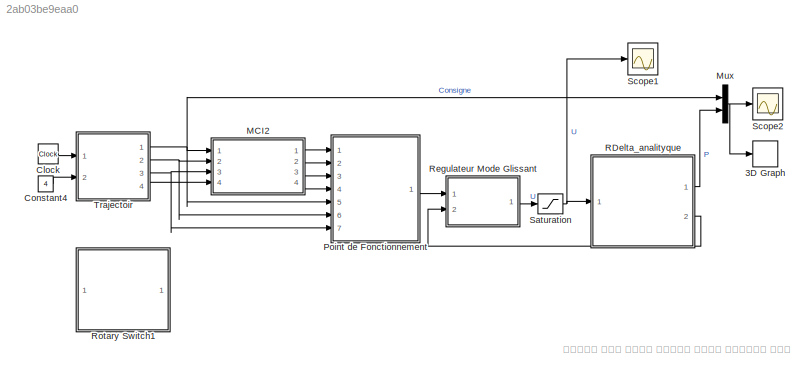
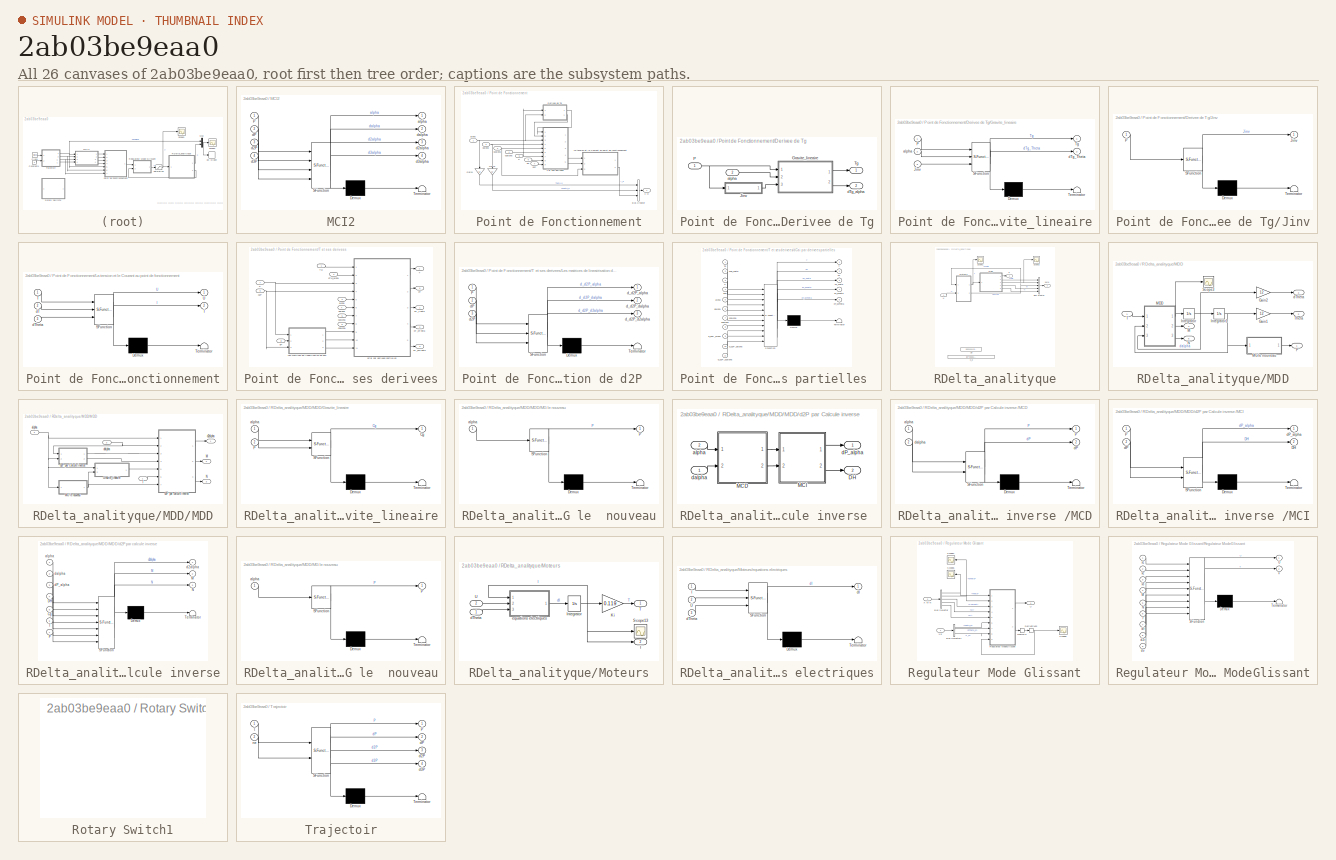
[diagram: thumbnail index - all 26 canvases of the model, root first then tree order]
MODEL slx_2ab03be9eaa0
KIND model
CONFIG AbsTol = auto
CONFIG FixedStep = auto
CONFIG MaxStep = auto
CONFIG MinStep = auto
CONFIG RelTol = 1e-3
CONFIG SampleTimeConstraint = Unconstrained
CONFIG Solver = ode45
CONFIG SolverMode = Auto
CONFIG SolverName = ode45
CONFIG StartTime = 0.0
CONFIG StopTime = 5
BLOCK [S-Function] 3D Graph
  CopyFcn = sfun3d([],[],[],'CopyBlock')
  DeleteFcn = sfun3d([],[],[],'DeleteBlock')
  FunctionName = sfun3d
  LoadFcn = sfun3d([],[],[],'LoadBlock')
  NameChangeFcn = sfun3d([],[],[],'NameChange')
  Parameters = ax,T,np,cp,gd,ls,mk
  Ports = [1]
  StartFcn = sfun3d([],[],[],'Start')
  StopFcn = sfun3d([],[],[],'Stop')
BLOCK [Clock] Clock
BLOCK [Constant] Constant4
  Value = 4
BLOCK [SubSystem] MCI2
  ErrorFcn = Stateflow.Translate.translate
  PermitHierarchicalResolution = ExplicitOnly
  Ports = [4, 4]
  RequestExecContextInheritance = off
  SFBlockType = MATLAB Function
  TreatAsAtomicUnit = on
BLOCK [Demux] MCI2/ Demux 
  Outputs = 1
  Ports = [1, 1]
BLOCK [S-Function] MCI2/ SFunction 
  EnableBusSupport = on
  FunctionName = sf_sfun
  PortCounts = [4 5]
  Ports = [4, 5]
  Tag = Stateflow S-Function Commande_1_ModeGlissant 2
BLOCK [Terminator] MCI2/ Terminator 
BLOCK [Inport] MCI2/P
  IconDisplay = Port number
BLOCK [Outport] MCI2/alpha
  IconDisplay = Port number
BLOCK [Inport] MCI2/d2P
  IconDisplay = Port number
  Port = 3
BLOCK [Outport] MCI2/d2alpha
  IconDisplay = Port number
  Port = 3
BLOCK [Inport] MCI2/d3P
  IconDisplay = Port number
  Port = 4
BLOCK [Outport] MCI2/d3alpha
  IconDisplay = Port number
  Port = 4
BLOCK [Inport] MCI2/dP
  IconDisplay = Port number
  Port = 2
BLOCK [Outport] MCI2/dalpha
  IconDisplay = Port number
  Port = 2
BLOCK [Mux] Mux
  DisplayOption = bar
  Inputs = 2
  Ports = [2, 1]
BLOCK [SubSystem] Point de Fonctionnement
  Ports = [7, 1]
  RequestExecContextInheritance = off
BLOCK [BusCreator] Point de Fonctionnement/Bus Creator
  DisplayOption = bar
  Inputs = 3
  Ports = [3, 1]
BLOCK [SubSystem] Point de Fonctionnement/Derivee de Tg
  Ports = [2, 2]
  RequestExecContextInheritance = off
BLOCK [SubSystem] Point de Fonctionnement/Derivee de Tg/Gravite_lineaire
  ErrorFcn = Stateflow.Translate.translate
  PermitHierarchicalResolution = ExplicitOnly
  Ports = [3, 2]
  RequestExecContextInheritance = off
  SFBlockType = MATLAB Function
  TreatAsAtomicUnit = on
BLOCK [Demux] Point de Fonctionnement/Derivee de Tg/Gravite_lineaire/ Demux 
  Outputs = 1
  Ports = [1, 1]
BLOCK [S-Function] Point de Fonctionnement/Derivee de Tg/Gravite_lineaire/ SFunction 
  EnableBusSupport = on
  FunctionName = sf_sfun
  PortCounts = [3 3]
  Ports = [3, 3]
  Tag = Stateflow S-Function Commande_1_ModeGlissant 6
BLOCK [Terminator] Point de Fonctionnement/Derivee de Tg/Gravite_lineaire/ Terminator 
BLOCK [Inport] Point de Fonctionnement/Derivee de Tg/Gravite_lineaire/Jinv
  IconDisplay = Port number
  Port = 3
BLOCK [Inport] Point de Fonctionnement/Derivee de Tg/Gravite_lineaire/P
  IconDisplay = Port number
BLOCK [Outport] Point de Fonctionnement/Derivee de Tg/Gravite_lineaire/Tg
  IconDisplay = Port number
BLOCK [Inport] Point de Fonctionnement/Derivee de Tg/Gravite_lineaire/alpha
  IconDisplay = Port number
  Port = 2
BLOCK [Outport] Point de Fonctionnement/Derivee de Tg/Gravite_lineaire/dTg_Theta
  IconDisplay = Port number
  Port = 2
BLOCK [SubSystem] Point de Fonctionnement/Derivee de Tg/Jinv
  ErrorFcn = Stateflow.Translate.translate
  PermitHierarchicalResolution = ExplicitOnly
  Ports = [1, 1]
  RequestExecContextInheritance = off
  SFBlockType = MATLAB Function
  TreatAsAtomicUnit = on
BLOCK [Demux] Point de Fonctionnement/Derivee de Tg/Jinv/ Demux 
  Outputs = 1
  Ports = [1, 1]
BLOCK [S-Function] Point de Fonctionnement/Derivee de Tg/Jinv/ SFunction 
  EnableBusSupport = on
  FunctionName = sf_sfun
  PortCounts = [1 2]
  Ports = [1, 2]
  Tag = Stateflow S-Function Commande_1_ModeGlissant 7
BLOCK [Terminator] Point de Fonctionnement/Derivee de Tg/Jinv/ Terminator 
BLOCK [Outport] Point de Fonctionnement/Derivee de Tg/Jinv/Jinv
  IconDisplay = Port number
BLOCK [Inport] Point de Fonctionnement/Derivee de Tg/Jinv/P
  IconDisplay = Port number
BLOCK [Inport] Point de Fonctionnement/Derivee de Tg/P
  IconDisplay = Port number
BLOCK [Outport] Point de Fonctionnement/Derivee de Tg/Tg
  IconDisplay = Port number
BLOCK [Inport] Point de Fonctionnement/Derivee de Tg/alpha
  IconDisplay = Port number
  Port = 2
BLOCK [Outport] Point de Fonctionnement/Derivee de Tg/dTg_alpha
  IconDisplay = Port number
  Port = 2
BLOCK [Gain] Point de Fonctionnement/Gain1
  Gain = 12
  OutDataTypeStr = Inherit: Inherit via internal rule
  ParamDataTypeStr = Inherit: Inherit via internal rule
  SaturateOnIntegerOverflow = off
BLOCK [Gain] Point de Fonctionnement/Gain4
  Gain = 12
  OutDataTypeStr = Inherit: Inherit via internal rule
  ParamDataTypeStr = Inherit: Inherit via internal rule
  SaturateOnIntegerOverflow = off
BLOCK [SubSystem] Point de Fonctionnement/La tension et le Courant au point de fonctionnement
  ErrorFcn = Stateflow.Translate.translate
  PermitHierarchicalResolution = ExplicitOnly
  Ports = [3, 2]
  RequestExecContextInheritance = off
  SFBlockType = MATLAB Function
  TreatAsAtomicUnit = on
BLOCK [Demux] Point de Fonctionnement/La tension et le Courant au point de fonctionnement/ Demux 
  Outputs = 1
  Ports = [1, 1]
BLOCK [S-Function] Point de Fonctionnement/La tension et le Courant au point de fonctionnement/ SFunction 
  EnableBusSupport = on
  FunctionName = sf_sfun
  PortCounts = [3 3]
  Ports = [3, 3]
  Tag = Stateflow S-Function Commande_1_ModeGlissant 11
BLOCK [Terminator] Point de Fonctionnement/La tension et le Courant au point de fonctionnement/ Terminator 
BLOCK [Outport] Point de Fonctionnement/La tension et le Courant au point de fonctionnement/I
  IconDisplay = Port number
  Port = 2
BLOCK [Inport] Point de Fonctionnement/La tension et le Courant au point de fonctionnement/T
  IconDisplay = Port number
BLOCK [Outport] Point de Fonctionnement/La tension et le Courant au point de fonctionnement/U
  IconDisplay = Port number
BLOCK [Inport] Point de Fonctionnement/La tension et le Courant au point de fonctionnement/dT
  IconDisplay = Port number
  Port = 2
BLOCK [Inport] Point de Fonctionnement/La tension et le Courant au point de fonctionnement/dTheta
  IconDisplay = Port number
  Port = 3
BLOCK [Inport] Point de Fonctionnement/P
  IconDisplay = Port number
  Port = 5
BLOCK [SubSystem] Point de Fonctionnement/T et ses derivees
  Ports = [9, 5]
  RequestExecContextInheritance = off
BLOCK [SubSystem] Point de Fonctionnement/T et ses derivees/Les matrices de lineairisation de d2P  
  ErrorFcn = Stateflow.Translate.translate
  PermitHierarchicalResolution = ExplicitOnly
  Ports = [3, 3]
  RequestExecContextInheritance = off
  SFBlockType = MATLAB Function
  TreatAsAtomicUnit = on
BLOCK [Demux] Point de Fonctionnement/T et ses derivees/Les matrices de lineairisation de d2P  / Demux 
  Outputs = 1
  Ports = [1, 1]
BLOCK [S-Function] Point de Fonctionnement/T et ses derivees/Les matrices de lineairisation de d2P  / SFunction 
  EnableBusSupport = on
  FunctionName = sf_sfun
  PortCounts = [3 4]
  Ports = [3, 4]
  Tag = Stateflow S-Function Commande_1_ModeGlissant 12
BLOCK [Terminator] Point de Fonctionnement/T et ses derivees/Les matrices de lineairisation de d2P  / Terminator 
BLOCK [Inport] Point de Fonctionnement/T et ses derivees/Les matrices de lineairisation de d2P  /P
  IconDisplay = Port number
BLOCK [Inport] Point de Fonctionnement/T et ses derivees/Les matrices de lineairisation de d2P  /d2P
  IconDisplay = Port number
  Port = 3
BLOCK [Inport] Point de Fonctionnement/T et ses derivees/Les matrices de lineairisation de d2P  /dP
  IconDisplay = Port number
  Port = 2
BLOCK [Outport] Point de Fonctionnement/T et ses derivees/Les matrices de lineairisation de d2P  /d_d2P_alpha
  IconDisplay = Port number
BLOCK [Outport] Point de Fonctionnement/T et ses derivees/Les matrices de lineairisation de d2P  /d_d2P_d2alpha
  IconDisplay = Port number
  Port = 3
BLOCK [Outport] Point de Fonctionnement/T et ses derivees/Les matrices de lineairisation de d2P  /d_d2P_dalpha
  IconDisplay = Port number
  Port = 2
BLOCK [Inport] Point de Fonctionnement/T et ses derivees/P
  IconDisplay = Port number
  Port = 7
BLOCK [Outport] Point de Fonctionnement/T et ses derivees/T
  IconDisplay = Port number
  Port = 4
BLOCK [Inport] Point de Fonctionnement/T et ses derivees/Tg
  IconDisplay = Port number
BLOCK [Inport] Point de Fonctionnement/T et ses derivees/alpha
  IconDisplay = Port number
  Port = 3
BLOCK [Inport] Point de Fonctionnement/T et ses derivees/d2P
  IconDisplay = Port number
  Port = 9
BLOCK [Inport] Point de Fonctionnement/T et ses derivees/d2alpha
  IconDisplay = Port number
  Port = 5
BLOCK [Inport] Point de Fonctionnement/T et ses derivees/d3alpha
  IconDisplay = Port number
  Port = 6
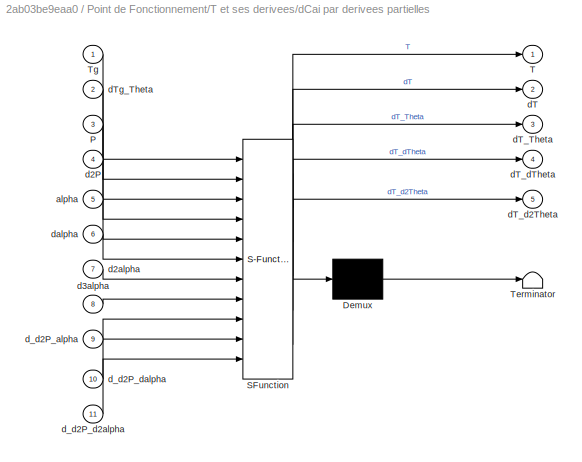
BLOCK [SubSystem] Point de Fonctionnement/T et ses derivees/dCai par derivees partielles 
  ErrorFcn = Stateflow.Translate.translate
  PermitHierarchicalResolution = ExplicitOnly
  Ports = [11, 5]
  RequestExecContextInheritance = off
  SFBlockType = MATLAB Function
  TreatAsAtomicUnit = on
BLOCK [Demux] Point de Fonctionnement/T et ses derivees/dCai par derivees partielles / Demux 
  Outputs = 1
  Ports = [1, 1]
BLOCK [S-Function] Point de Fonctionnement/T et ses derivees/dCai par derivees partielles / SFunction 
  EnableBusSupport = on
  FunctionName = sf_sfun
  PortCounts = [11 6]
  Ports = [11, 6]
  Tag = Stateflow S-Function Commande_1_ModeGlissant 13
BLOCK [Terminator] Point de Fonctionnement/T et ses derivees/dCai par derivees partielles / Terminator 
BLOCK [Inport] Point de Fonctionnement/T et ses derivees/dCai par derivees partielles /P
  IconDisplay = Port number
  Port = 3
BLOCK [Outport] Point de Fonctionnement/T et ses derivees/dCai par derivees partielles /T
  IconDisplay = Port number
BLOCK [Inport] Point de Fonctionnement/T et ses derivees/dCai par derivees partielles /Tg
  IconDisplay = Port number
BLOCK [Inport] Point de Fonctionnement/T et ses derivees/dCai par derivees partielles /alpha
  IconDisplay = Port number
  Port = 5
BLOCK [Inport] Point de Fonctionnement/T et ses derivees/dCai par derivees partielles /d2P
  IconDisplay = Port number
  Port = 4
BLOCK [Inport] Point de Fonctionnement/T et ses derivees/dCai par derivees partielles /d2alpha
  IconDisplay = Port number
  Port = 7
BLOCK [Inport] Point de Fonctionnement/T et ses derivees/dCai par derivees partielles /d3alpha
  IconDisplay = Port number
  Port = 8
BLOCK [Outport] Point de Fonctionnement/T et ses derivees/dCai par derivees partielles /dT
  IconDisplay = Port number
  Port = 2
BLOCK [Outport] Point de Fonctionnement/T et ses derivees/dCai par derivees partielles /dT_Theta
  IconDisplay = Port number
  Port = 3
BLOCK [Outport] Point de Fonctionnement/T et ses derivees/dCai par derivees partielles /dT_d2Theta
  IconDisplay = Port number
  Port = 5
BLOCK [Outport] Point de Fonctionnement/T et ses derivees/dCai par derivees partielles /dT_dTheta
  IconDisplay = Port number
  Port = 4
BLOCK [Inport] Point de Fonctionnement/T et ses derivees/dCai par derivees partielles /dTg_Theta
  IconDisplay = Port number
  Port = 2
BLOCK [Inport] Point de Fonctionnement/T et ses derivees/dCai par derivees partielles /d_d2P_alpha
  IconDisplay = Port number
  Port = 9
BLOCK [Inport] Point de Fonctionnement/T et ses derivees/dCai par derivees partielles /d_d2P_d2alpha
  IconDisplay = Port number
  Port = 11
BLOCK [Inport] Point de Fonctionnement/T et ses derivees/dCai par derivees partielles /d_d2P_dalpha
  IconDisplay = Port number
  Port = 10
BLOCK [Inport] Point de Fonctionnement/T et ses derivees/dCai par derivees partielles /dalpha
  IconDisplay = Port number
  Port = 6
BLOCK [Inport] Point de Fonctionnement/T et ses derivees/dP
  IconDisplay = Port number
  Port = 8
BLOCK [Outport] Point de Fonctionnement/T et ses derivees/dT
  IconDisplay = Port number
  Port = 5
BLOCK [Outport] Point de Fonctionnement/T et ses derivees/dT_Theta
  IconDisplay = Port number
BLOCK [Outport] Point de Fonctionnement/T et ses derivees/dT_d2Theta
  IconDisplay = Port number
  Port = 3
BLOCK [Outport] Point de Fonctionnement/T et ses derivees/dT_dTheta
  IconDisplay = Port number
  Port = 2
BLOCK [Inport] Point de Fonctionnement/T et ses derivees/dTg_alpha
  IconDisplay = Port number
  Port = 2
BLOCK [Inport] Point de Fonctionnement/T et ses derivees/dalpha
  IconDisplay = Port number
  Port = 4
BLOCK [Outport] Point de Fonctionnement/X-d
  IconDisplay = Port number
BLOCK [Inport] Point de Fonctionnement/alpha
  IconDisplay = Port number
BLOCK [Inport] Point de Fonctionnement/d2P
  IconDisplay = Port number
  Port = 7
BLOCK [Inport] Point de Fonctionnement/d2alpha
  IconDisplay = Port number
  Port = 3
BLOCK [Inport] Point de Fonctionnement/d3alpha
  IconDisplay = Port number
  Port = 4
BLOCK [Inport] Point de Fonctionnement/dP
  IconDisplay = Port number
  Port = 6
BLOCK [Inport] Point de Fonctionnement/dalpha
  IconDisplay = Port number
  Port = 2
BLOCK [SubSystem] RDelta_analityque
  Ports = [1, 2]
  RequestExecContextInheritance = off
BLOCK [BusCreator] RDelta_analityque/Bus Creator
  DisplayOption = bar
  Inputs = 5
  Ports = [5, 1]
BLOCK [SubSystem] RDelta_analityque/MDD
  Ports = [1, 5]
  RequestExecContextInheritance = off
BLOCK [Gain] RDelta_analityque/MDD/Gain1
  Gain = 12
  OutDataTypeStr = Inherit: Inherit via internal rule
  ParamDataTypeStr = Inherit: Inherit via internal rule
  SaturateOnIntegerOverflow = off
BLOCK [Gain] RDelta_analityque/MDD/Gain2
  Gain = 12
  OutDataTypeStr = Inherit: Inherit via internal rule
  ParamDataTypeStr = Inherit: Inherit via internal rule
  SaturateOnIntegerOverflow = off
BLOCK [Integrator] RDelta_analityque/MDD/Integrator
  InitialCondition = [0;0;0]
  Ports = [1, 1]
BLOCK [Integrator] RDelta_analityque/MDD/Integrator1
  InitialCondition = 0.0651*[1;1;1]
  Ports = [1, 1]
BLOCK [Outport] RDelta_analityque/MDD/M
  IconDisplay = Port number
  Port = 4
BLOCK [SubSystem] RDelta_analityque/MDD/MDD
  Ports = [3, 3]
  RequestExecContextInheritance = off
BLOCK [SubSystem] RDelta_analityque/MDD/MDD/Gravite_lineaire
  ErrorFcn = Stateflow.Translate.translate
  PermitHierarchicalResolution = ExplicitOnly
  Ports = [2, 1]
  RequestExecContextInheritance = off
  SFBlockType = MATLAB Function
  TreatAsAtomicUnit = on
BLOCK [Demux] RDelta_analityque/MDD/MDD/Gravite_lineaire/ Demux 
  Outputs = 1
  Ports = [1, 1]
BLOCK [S-Function] RDelta_analityque/MDD/MDD/Gravite_lineaire/ SFunction 
  EnableBusSupport = on
  FunctionName = sf_sfun
  PortCounts = [2 2]
  Ports = [2, 2]
  Tag = Stateflow S-Function Commande_1_ModeGlissant 8
BLOCK [Terminator] RDelta_analityque/MDD/MDD/Gravite_lineaire/ Terminator 
BLOCK [Outport] RDelta_analityque/MDD/MDD/Gravite_lineaire/Cg
  IconDisplay = Port number
BLOCK [Inport] RDelta_analityque/MDD/MDD/Gravite_lineaire/P
  IconDisplay = Port number
  Port = 2
BLOCK [Inport] RDelta_analityque/MDD/MDD/Gravite_lineaire/alpha
  IconDisplay = Port number
BLOCK [Outport] RDelta_analityque/MDD/MDD/M
  IconDisplay = Port number
  Port = 2
BLOCK [SubSystem] RDelta_analityque/MDD/MDD/MG le  nouveau
  ErrorFcn = Stateflow.Translate.translate
  PermitHierarchicalResolution = ExplicitOnly
  Ports = [1, 1]
  RequestExecContextInheritance = off
  SFBlockType = MATLAB Function
  TreatAsAtomicUnit = on
BLOCK [Demux] RDelta_analityque/MDD/MDD/MG le  nouveau/ Demux 
  Outputs = 1
  Ports = [1, 1]
BLOCK [S-Function] RDelta_analityque/MDD/MDD/MG le  nouveau/ SFunction 
  EnableBusSupport = on
  FunctionName = sf_sfun
  PortCounts = [1 2]
  Ports = [1, 2]
  Tag = Stateflow S-Function Commande_1_ModeGlissant 1
BLOCK [Terminator] RDelta_analityque/MDD/MDD/MG le  nouveau/ Terminator 
BLOCK [Outport] RDelta_analityque/MDD/MDD/MG le  nouveau/P
  IconDisplay = Port number
BLOCK [Inport] RDelta_analityque/MDD/MDD/MG le  nouveau/alpha
  IconDisplay = Port number
BLOCK [Outport] RDelta_analityque/MDD/MDD/N
  IconDisplay = Port number
  Port = 3
BLOCK [Inport] RDelta_analityque/MDD/MDD/T
  IconDisplay = Port number
BLOCK [Inport] RDelta_analityque/MDD/MDD/alpha
  IconDisplay = Port number
  Port = 2
BLOCK [SubSystem] RDelta_analityque/MDD/MDD/d2P par Calcule inverse 
  Ports = [2, 2]
  RequestExecContextInheritance = off
BLOCK [Outport] RDelta_analityque/MDD/MDD/d2P par Calcule inverse /DH
  IconDisplay = Port number
  Port = 2
BLOCK [SubSystem] RDelta_analityque/MDD/MDD/d2P par Calcule inverse /MCD
  ErrorFcn = Stateflow.Translate.translate
  PermitHierarchicalResolution = ExplicitOnly
  Ports = [2, 2]
  RequestExecContextInheritance = off
  SFBlockType = MATLAB Function
  TreatAsAtomicUnit = on
BLOCK [Demux] RDelta_analityque/MDD/MDD/d2P par Calcule inverse /MCD/ Demux 
  Outputs = 1
  Ports = [1, 1]
BLOCK [S-Function] RDelta_analityque/MDD/MDD/d2P par Calcule inverse /MCD/ SFunction 
  EnableBusSupport = on
  FunctionName = sf_sfun
  PortCounts = [2 3]
  Ports = [2, 3]
  Tag = Stateflow S-Function Commande_1_ModeGlissant 3
BLOCK [Terminator] RDelta_analityque/MDD/MDD/d2P par Calcule inverse /MCD/ Terminator 
BLOCK [Outport] RDelta_analityque/MDD/MDD/d2P par Calcule inverse /MCD/P
  IconDisplay = Port number
BLOCK [Inport] RDelta_analityque/MDD/MDD/d2P par Calcule inverse /MCD/alpha
  IconDisplay = Port number
BLOCK [Outport] RDelta_analityque/MDD/MDD/d2P par Calcule inverse /MCD/dP
  IconDisplay = Port number
  Port = 2
BLOCK [Inport] RDelta_analityque/MDD/MDD/d2P par Calcule inverse /MCD/dalpha
  IconDisplay = Port number
  Port = 2
BLOCK [SubSystem] RDelta_analityque/MDD/MDD/d2P par Calcule inverse /MCI
  ErrorFcn = Stateflow.Translate.translate
  PermitHierarchicalResolution = ExplicitOnly
  Ports = [2, 2]
  RequestExecContextInheritance = off
  SFBlockType = MATLAB Function
  TreatAsAtomicUnit = on
BLOCK [Demux] RDelta_analityque/MDD/MDD/d2P par Calcule inverse /MCI/ Demux 
  Outputs = 1
  Ports = [1, 1]
BLOCK [S-Function] RDelta_analityque/MDD/MDD/d2P par Calcule inverse /MCI/ SFunction 
  EnableBusSupport = on
  FunctionName = sf_sfun
  PortCounts = [2 3]
  Ports = [2, 3]
  Tag = Stateflow S-Function Commande_1_ModeGlissant 14
BLOCK [Terminator] RDelta_analityque/MDD/MDD/d2P par Calcule inverse /MCI/ Terminator 
BLOCK [Outport] RDelta_analityque/MDD/MDD/d2P par Calcule inverse /MCI/DH
  IconDisplay = Port number
  Port = 2
BLOCK [Inport] RDelta_analityque/MDD/MDD/d2P par Calcule inverse /MCI/P
  IconDisplay = Port number
BLOCK [Inport] RDelta_analityque/MDD/MDD/d2P par Calcule inverse /MCI/dP
  IconDisplay = Port number
  Port = 2
BLOCK [Outport] RDelta_analityque/MDD/MDD/d2P par Calcule inverse /MCI/dP_alpha
  IconDisplay = Port number
BLOCK [Inport] RDelta_analityque/MDD/MDD/d2P par Calcule inverse /alpha
  IconDisplay = Port number
  Port = 2
BLOCK [Outport] RDelta_analityque/MDD/MDD/d2P par Calcule inverse /dP_alpha
  IconDisplay = Port number
BLOCK [Inport] RDelta_analityque/MDD/MDD/d2P par Calcule inverse /dalpha
  IconDisplay = Port number
BLOCK [SubSystem] RDelta_analityque/MDD/MDD/d2P par calcule inverse
  ErrorFcn = Stateflow.Translate.translate
  PermitHierarchicalResolution = ExplicitOnly
  Ports = [7, 3]
  RequestExecContextInheritance = off
  SFBlockType = MATLAB Function
  TreatAsAtomicUnit = on
BLOCK [Demux] RDelta_analityque/MDD/MDD/d2P par calcule inverse/ Demux 
  Outputs = 1
  Ports = [1, 1]
BLOCK [S-Function] RDelta_analityque/MDD/MDD/d2P par calcule inverse/ SFunction 
  EnableBusSupport = on
  FunctionName = sf_sfun
  PortCounts = [7 4]
  Ports = [7, 4]
  Tag = Stateflow S-Function Commande_1_ModeGlissant 15
BLOCK [Terminator] RDelta_analityque/MDD/MDD/d2P par calcule inverse/ Terminator 
BLOCK [Inport] RDelta_analityque/MDD/MDD/d2P par calcule inverse/Cg
  IconDisplay = Port number
  Port = 5
BLOCK [Inport] RDelta_analityque/MDD/MDD/d2P par calcule inverse/DH
  IconDisplay = Port number
  Port = 4
BLOCK [Outport] RDelta_analityque/MDD/MDD/d2P par calcule inverse/M
  IconDisplay = Port number
  Port = 2
BLOCK [Outport] RDelta_analityque/MDD/MDD/d2P par calcule inverse/N
  IconDisplay = Port number
  Port = 3
BLOCK [Inport] RDelta_analityque/MDD/MDD/d2P par calcule inverse/P
  IconDisplay = Port number
  Port = 7
BLOCK [Inport] RDelta_analityque/MDD/MDD/d2P par calcule inverse/T
  IconDisplay = Port number
  Port = 6
BLOCK [Inport] RDelta_analityque/MDD/MDD/d2P par calcule inverse/alpha
  IconDisplay = Port number
BLOCK [Outport] RDelta_analityque/MDD/MDD/d2P par calcule inverse/d2alpha
  IconDisplay = Port number
BLOCK [Inport] RDelta_analityque/MDD/MDD/d2P par calcule inverse/dP_alpha
  IconDisplay = Port number
  Port = 3
BLOCK [Inport] RDelta_analityque/MDD/MDD/d2P par calcule inverse/dalpha
  IconDisplay = Port number
  Port = 2
BLOCK [Outport] RDelta_analityque/MDD/MDD/d2alpha
  IconDisplay = Port number
BLOCK [Inport] RDelta_analityque/MDD/MDD/dalpha
  IconDisplay = Port number
  Port = 3
BLOCK [SubSystem] RDelta_analityque/MDD/MG le  nouveau
  ErrorFcn = Stateflow.Translate.translate
  PermitHierarchicalResolution = ExplicitOnly
  Ports = [1, 1]
  RequestExecContextInheritance = off
  SFBlockType = MATLAB Function
  TreatAsAtomicUnit = on
BLOCK [Demux] RDelta_analityque/MDD/MG le  nouveau/ Demux 
  Outputs = 1
  Ports = [1, 1]
BLOCK [S-Function] RDelta_analityque/MDD/MG le  nouveau/ SFunction 
  EnableBusSupport = on
  FunctionName = sf_sfun
  PortCounts = [1 2]
  Ports = [1, 2]
  Tag = Stateflow S-Function Commande_1_ModeGlissant 16
BLOCK [Terminator] RDelta_analityque/MDD/MG le  nouveau/ Terminator 
BLOCK [Outport] RDelta_analityque/MDD/MG le  nouveau/P
  IconDisplay = Port number
BLOCK [Inport] RDelta_analityque/MDD/MG le  nouveau/alpha
  IconDisplay = Port number
BLOCK [Outport] RDelta_analityque/MDD/N
  IconDisplay = Port number
  Port = 5
BLOCK [Outport] RDelta_analityque/MDD/P
  IconDisplay = Port number
BLOCK [Scope] RDelta_analityque/MDD/Scope3
  Floating = off
  LimitDataPoints = off
  NumInputPorts = 1
  Ports = [1]
  SaveName = ScopeData2
  TimeRange = 2.077341948455237
  YMax = 0.00275
  YMin = 0.00075
BLOCK [Inport] RDelta_analityque/MDD/T
  IconDisplay = Port number
BLOCK [Outport] RDelta_analityque/MDD/Theta
  IconDisplay = Port number
  Port = 2
BLOCK [Outport] RDelta_analityque/MDD/dTheta
  IconDisplay = Port number
  Port = 3
BLOCK [SubSystem] RDelta_analityque/Moteurs
  Ports = [2, 2]
  RequestExecContextInheritance = off
BLOCK [Outport] RDelta_analityque/Moteurs/I
  IconDisplay = Port number
  Port = 2
BLOCK [Integrator] RDelta_analityque/Moteurs/Integrator
  InitialCondition = -0.105*[1;1;1]
  Ports = [1, 1]
BLOCK [Gain] RDelta_analityque/Moteurs/Ki
  Gain = 0.119
  OutDataTypeStr = Inherit: Inherit via internal rule
  ParamDataTypeStr = Inherit: Inherit via internal rule
  SaturateOnIntegerOverflow = off
BLOCK [Scope] RDelta_analityque/Moteurs/Scope13
  Floating = off
  LimitDataPoints = off
  NumInputPorts = 1
  Ports = [1]
  SaveName = ScopeData24
  TimeRange = 0.507510643892459
  YMax = 1000
  YMin = -1000
BLOCK [Outport] RDelta_analityque/Moteurs/T
  IconDisplay = Port number
BLOCK [Inport] RDelta_analityque/Moteurs/U
  IconDisplay = Port number
  Port = 2
BLOCK [Inport] RDelta_analityque/Moteurs/dTheta
  IconDisplay = Port number
BLOCK [SubSystem] RDelta_analityque/Moteurs/equations electriques
  ErrorFcn = Stateflow.Translate.translate
  PermitHierarchicalResolution = ExplicitOnly
  Ports = [3, 1]
  RequestExecContextInheritance = off
  SFBlockType = MATLAB Function
  TreatAsAtomicUnit = on
BLOCK [Demux] RDelta_analityque/Moteurs/equations electriques/ Demux 
  Outputs = 1
  Ports = [1, 1]
BLOCK [S-Function] RDelta_analityque/Moteurs/equations electriques/ SFunction 
  EnableBusSupport = on
  FunctionName = sf_sfun
  PortCounts = [3 2]
  Ports = [3, 2]
  Tag = Stateflow S-Function Commande_1_ModeGlissant 26
BLOCK [Terminator] RDelta_analityque/Moteurs/equations electriques/ Terminator 
BLOCK [Inport] RDelta_analityque/Moteurs/equations electriques/I
  IconDisplay = Port number
BLOCK [Inport] RDelta_analityque/Moteurs/equations electriques/U
  IconDisplay = Port number
  Port = 2
BLOCK [Outport] RDelta_analityque/Moteurs/equations electriques/dI
  IconDisplay = Port number
BLOCK [Inport] RDelta_analityque/Moteurs/equations electriques/dTheta
  IconDisplay = Port number
  Port = 3
BLOCK [Outport] RDelta_analityque/P
  IconDisplay = Port number
BLOCK [Scope] RDelta_analityque/Scope1
  Floating = off
  LimitDataPoints = off
  NumInputPorts = 1
  Ports = [1]
  SaveName = ScopeData3
  YMax = 0.175
  YMin = -0.2
BLOCK [Scope] RDelta_analityque/Scope2
  Floating = off
  LimitDataPoints = off
  NumInputPorts = 1
  Ports = [1]
  SaveName = ScopeData7
  YMax = 0.774531
  YMin = 0.774525
BLOCK [Inport] RDelta_analityque/U
  IconDisplay = Port number
BLOCK [Constant] RDelta_analityque/U0
  Value = 0.001041*[1;1;1]
BLOCK [Outport] RDelta_analityque/XMN
  IconDisplay = Port number
  Port = 2
BLOCK [Constant] RDelta_analityque/X_0
  Value = [ 10*0.0651*[1;1;1] ;[0;0;0];-0.1041*[1;1;1] ]
BLOCK [SubSystem] Regulateur Mode Glissant
  Ports = [2, 1]
  RequestExecContextInheritance = off
BLOCK [BusSelector] Regulateur Mode Glissant/Bus Selector
  OutputSignals = Theta,dTheta,Courant,M,N
  Ports = [1, 5]
BLOCK [BusSelector] Regulateur Mode Glissant/Bus Selector1
  OutputSignals = Theta_d,dTheta_d,I_d
  Ports = [1, 3]
BLOCK [Derivative] Regulateur Mode Glissant/Derivative3
BLOCK [Memory] Regulateur Mode Glissant/Memory2
  X0 = [0;0;0]
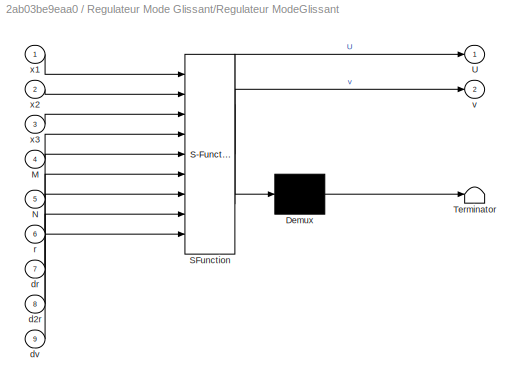
BLOCK [SubSystem] Regulateur Mode Glissant/Regulateur ModeGlissant
  ErrorFcn = Stateflow.Translate.translate
  PermitHierarchicalResolution = ExplicitOnly
  Ports = [9, 2]
  RequestExecContextInheritance = off
  SFBlockType = MATLAB Function
  TreatAsAtomicUnit = on
BLOCK [Demux] Regulateur Mode Glissant/Regulateur ModeGlissant/ Demux 
  Outputs = 1
  Ports = [1, 1]
BLOCK [S-Function] Regulateur Mode Glissant/Regulateur ModeGlissant/ SFunction 
  EnableBusSupport = on
  FunctionName = sf_sfun
  PortCounts = [9 3]
  Ports = [9, 3]
  Tag = Stateflow S-Function Commande_1_ModeGlissant 4
BLOCK [Terminator] Regulateur Mode Glissant/Regulateur ModeGlissant/ Terminator 
BLOCK [Inport] Regulateur Mode Glissant/Regulateur ModeGlissant/M
  IconDisplay = Port number
  Port = 4
BLOCK [Inport] Regulateur Mode Glissant/Regulateur ModeGlissant/N
  IconDisplay = Port number
  Port = 5
BLOCK [Outport] Regulateur Mode Glissant/Regulateur ModeGlissant/U
  IconDisplay = Port number
BLOCK [Inport] Regulateur Mode Glissant/Regulateur ModeGlissant/d2r
  IconDisplay = Port number
  Port = 8
BLOCK [Inport] Regulateur Mode Glissant/Regulateur ModeGlissant/dr
  IconDisplay = Port number
  Port = 7
BLOCK [Inport] Regulateur Mode Glissant/Regulateur ModeGlissant/dv
  IconDisplay = Port number
  Port = 9
BLOCK [Inport] Regulateur Mode Glissant/Regulateur ModeGlissant/r
  IconDisplay = Port number
  Port = 6
BLOCK [Outport] Regulateur Mode Glissant/Regulateur ModeGlissant/v
  IconDisplay = Port number
  Port = 2
BLOCK [Inport] Regulateur Mode Glissant/Regulateur ModeGlissant/x1
  IconDisplay = Port number
BLOCK [Inport] Regulateur Mode Glissant/Regulateur ModeGlissant/x2
  IconDisplay = Port number
  Port = 2
BLOCK [Inport] Regulateur Mode Glissant/Regulateur ModeGlissant/x3
  IconDisplay = Port number
  Port = 3
BLOCK [Scope] Regulateur Mode Glissant/Scope5
  Floating = off
  LimitDataPoints = off
  NumInputPorts = 1
  Ports = [1]
  SaveName = ScopeData6
  YMax = 18000
  YMin = -2000
BLOCK [Scope] Regulateur Mode Glissant/Scope6
  Floating = off
  LimitDataPoints = off
  NumInputPorts = 1
  Ports = [1]
  SaveName = ScopeData9
  YMax = 18000
  YMin = -2000
BLOCK [Scope] Regulateur Mode Glissant/Scope7
  Floating = off
  LimitDataPoints = off
  NumInputPorts = 1
  Ports = [1]
  SaveName = ScopeData10
  YMax = 18000
  YMin = -2000
BLOCK [Outport] Regulateur Mode Glissant/U
  IconDisplay = Port number
BLOCK [Inport] Regulateur Mode Glissant/X M N
  IconDisplay = Port number
  Port = 2
BLOCK [Inport] Regulateur Mode Glissant/Xd
  IconDisplay = Port number
BLOCK [SubSystem] Rotary Switch1
  DialogController = hmiCreateDDGDialog
  IsWebBlock = on
  MaskHideContents = on
  Ports = []
  RequestExecContextInheritance = off
BLOCK [Saturate] Saturation
  InputPortMap = u0
  LowerLimit = -24
  Ports = [1, 1]
  UpperLimit = 24
BLOCK [Scope] Scope1
  Floating = off
  LimitDataPoints = off
  NumInputPorts = 1
  Ports = [1]
  SaveName = ScopeData1
  YMax = 4.5
BLOCK [Scope] Scope2
  Floating = off
  LimitDataPoints = off
  NumInputPorts = 1
  Ports = [1]
  YMax = 0.225
  YMin = -0.325
BLOCK [SubSystem] Trajectoir
  ErrorFcn = Stateflow.Translate.translate
  PermitHierarchicalResolution = ExplicitOnly
  Ports = [2, 4]
  RequestExecContextInheritance = off
  SFBlockType = MATLAB Function
  TreatAsAtomicUnit = on
BLOCK [Demux] Trajectoir/ Demux 
  Outputs = 1
  Ports = [1, 1]
BLOCK [S-Function] Trajectoir/ SFunction 
  EnableBusSupport = on
  FunctionName = sf_sfun
  PortCounts = [2 5]
  Ports = [2, 5]
  Tag = Stateflow S-Function Commande_1_ModeGlissant 23
BLOCK [Terminator] Trajectoir/ Terminator 
BLOCK [Outport] Trajectoir/P
  IconDisplay = Port number
BLOCK [Outport] Trajectoir/d2P
  IconDisplay = Port number
  Port = 3
BLOCK [Outport] Trajectoir/d3P
  IconDisplay = Port number
  Port = 4
BLOCK [Outport] Trajectoir/dP
  IconDisplay = Port number
  Port = 2
BLOCK [Inport] Trajectoir/ne
  IconDisplay = Port number
  Port = 2
BLOCK [Inport] Trajectoir/t
  IconDisplay = Port number
ANNOTATION (root): الحمد لله حمدا كثيرا طيبا مباركا فيه
LINE Clock:1 -> Trajectoir:1
LINE Constant4:1 -> Trajectoir:2
LINE MCI2:1 -> Point de Fonctionnement:1
LINE MCI2:2 -> Point de Fonctionnement:2
LINE MCI2:3 -> Point de Fonctionnement:3
LINE MCI2:4 -> Point de Fonctionnement:4
NET Mux:1 -> 3D Graph:1, Scope2:1
LINE Point de Fonctionnement/Bus Creator:1 -> Point de Fonctionnement/X-d:1
LINE Point de Fonctionnement/Derivee de Tg/Gravite_lineaire:1 -> Point de Fonctionnement/Derivee de Tg/Tg:1
LINE Point de Fonctionnement/Derivee de Tg/Gravite_lineaire:2 -> Point de Fonctionnement/Derivee de Tg/dTg_alpha:1
LINE Point de Fonctionnement/Derivee de Tg/Jinv:1 -> Point de Fonctionnement/Derivee de Tg/Gravite_lineaire:3
NET Point de Fonctionnement/Derivee de Tg/P:1 -> Point de Fonctionnement/Derivee de Tg/Gravite_lineaire:1, Point de Fonctionnement/Derivee de Tg/Jinv:1
LINE Point de Fonctionnement/Derivee de Tg/alpha:1 -> Point de Fonctionnement/Derivee de Tg/Gravite_lineaire:2
LINE Point de Fonctionnement/Derivee de Tg:1 -> Point de Fonctionnement/T et ses derivees:1
LINE Point de Fonctionnement/Derivee de Tg:2 -> Point de Fonctionnement/T et ses derivees:2
LINE Point de Fonctionnement/Gain1:1 -> Point de Fonctionnement/Bus Creator:2
LINE Point de Fonctionnement/Gain4:1 -> Point de Fonctionnement/Bus Creator:1
LINE Point de Fonctionnement/La tension et le Courant au point de fonctionnement:2 -> Point de Fonctionnement/Bus Creator:3
NET Point de Fonctionnement/P:1 -> Point de Fonctionnement/Derivee de Tg:1, Point de Fonctionnement/T et ses derivees:7
LINE Point de Fonctionnement/T et ses derivees/Les matrices de lineairisation de d2P  :1 -> Point de Fonctionnement/T et ses derivees/dCai par derivees partielles :9
LINE Point de Fonctionnement/T et ses derivees/Les matrices de lineairisation de d2P  :2 -> Point de Fonctionnement/T et ses derivees/dCai par derivees partielles :10
LINE Point de Fonctionnement/T et ses derivees/Les matrices de lineairisation de d2P  :3 -> Point de Fonctionnement/T et ses derivees/dCai par derivees partielles :11
NET Point de Fonctionnement/T et ses derivees/P:1 -> Point de Fonctionnement/T et ses derivees/Les matrices de lineairisation de d2P  :1, Point de Fonctionnement/T et ses derivees/dCai par derivees partielles :3
LINE Point de Fonctionnement/T et ses derivees/Tg:1 -> Point de Fonctionnement/T et ses derivees/dCai par derivees partielles :1
LINE Point de Fonctionnement/T et ses derivees/alpha:1 -> Point de Fonctionnement/T et ses derivees/dCai par derivees partielles :5
NET Point de Fonctionnement/T et ses derivees/d2P:1 -> Point de Fonctionnement/T et ses derivees/Les matrices de lineairisation de d2P  :3, Point de Fonctionnement/T et ses derivees/dCai par derivees partielles :4
LINE Point de Fonctionnement/T et ses derivees/d2alpha:1 -> Point de Fonctionnement/T et ses derivees/dCai par derivees partielles :7
LINE Point de Fonctionnement/T et ses derivees/d3alpha:1 -> Point de Fonctionnement/T et ses derivees/dCai par derivees partielles :8
LINE Point de Fonctionnement/T et ses derivees/dCai par derivees partielles :1 -> Point de Fonctionnement/T et ses derivees/T:1
LINE Point de Fonctionnement/T et ses derivees/dCai par derivees partielles :2 -> Point de Fonctionnement/T et ses derivees/dT:1
LINE Point de Fonctionnement/T et ses derivees/dCai par derivees partielles :3 -> Point de Fonctionnement/T et ses derivees/dT_Theta:1
LINE Point de Fonctionnement/T et ses derivees/dCai par derivees partielles :4 -> Point de Fonctionnement/T et ses derivees/dT_dTheta:1
LINE Point de Fonctionnement/T et ses derivees/dCai par derivees partielles :5 -> Point de Fonctionnement/T et ses derivees/dT_d2Theta:1
LINE Point de Fonctionnement/T et ses derivees/dP:1 -> Point de Fonctionnement/T et ses derivees/Les matrices de lineairisation de d2P  :2
LINE Point de Fonctionnement/T et ses derivees/dTg_alpha:1 -> Point de Fonctionnement/T et ses derivees/dCai par derivees partielles :2
LINE Point de Fonctionnement/T et ses derivees/dalpha:1 -> Point de Fonctionnement/T et ses derivees/dCai par derivees partielles :6
LINE Point de Fonctionnement/T et ses derivees:4 -> Point de Fonctionnement/La tension et le Courant au point de fonctionnement:1
LINE Point de Fonctionnement/T et ses derivees:5 -> Point de Fonctionnement/La tension et le Courant au point de fonctionnement:2
NET Point de Fonctionnement/alpha:1 -> Point de Fonctionnement/Derivee de Tg:2, Point de Fonctionnement/Gain4:1, Point de Fonctionnement/T et ses derivees:3
LINE Point de Fonctionnement/d2P:1 -> Point de Fonctionnement/T et ses derivees:9
NET Point de Fonctionnement/d2alpha:1 -> Point de Fonctionnement/La tension et le Courant au point de fonctionnement:3, Point de Fonctionnement/T et ses derivees:5
LINE Point de Fonctionnement/d3alpha:1 -> Point de Fonctionnement/T et ses derivees:6
LINE Point de Fonctionnement/dP:1 -> Point de Fonctionnement/T et ses derivees:8
NET Point de Fonctionnement/dalpha:1 -> Point de Fonctionnement/Gain1:1, Point de Fonctionnement/T et ses derivees:4
LINE Point de Fonctionnement:1 -> Regulateur Mode Glissant:1
LINE RDelta_analityque/Bus Creator:1 -> RDelta_analityque/XMN:1
LINE RDelta_analityque/MDD/Gain1:1 -> RDelta_analityque/MDD/Theta:1
LINE RDelta_analityque/MDD/Gain2:1 -> RDelta_analityque/MDD/dTheta:1
NET RDelta_analityque/MDD/Integrator1:1 -> RDelta_analityque/MDD/Gain1:1, RDelta_analityque/MDD/MDD:2, RDelta_analityque/MDD/MG le  nouveau:1
NET RDelta_analityque/MDD/Integrator:1 -> RDelta_analityque/MDD/Gain2:1, RDelta_analityque/MDD/Integrator1:1, RDelta_analityque/MDD/MDD:3
LINE RDelta_analityque/MDD/MDD/Gravite_lineaire:1 -> RDelta_analityque/MDD/MDD/d2P par calcule inverse:5
NET RDelta_analityque/MDD/MDD/MG le  nouveau:1 -> RDelta_analityque/MDD/MDD/Gravite_lineaire:2, RDelta_analityque/MDD/MDD/d2P par calcule inverse:7
LINE RDelta_analityque/MDD/MDD/T:1 -> RDelta_analityque/MDD/MDD/d2P par calcule inverse:6
NET RDelta_analityque/MDD/MDD/alpha:1 -> RDelta_analityque/MDD/MDD/Gravite_lineaire:1, RDelta_analityque/MDD/MDD/MG le  nouveau:1, RDelta_analityque/MDD/MDD/d2P par Calcule inverse :2, RDelta_analityque/MDD/MDD/d2P par calcule inverse:1
LINE RDelta_analityque/MDD/MDD/d2P par Calcule inverse /MCD:1 -> RDelta_analityque/MDD/MDD/d2P par Calcule inverse /MCI:1
LINE RDelta_analityque/MDD/MDD/d2P par Calcule inverse /MCD:2 -> RDelta_analityque/MDD/MDD/d2P par Calcule inverse /MCI:2
LINE RDelta_analityque/MDD/MDD/d2P par Calcule inverse /MCI:1 -> RDelta_analityque/MDD/MDD/d2P par Calcule inverse /dP_alpha:1
LINE RDelta_analityque/MDD/MDD/d2P par Calcule inverse /MCI:2 -> RDelta_analityque/MDD/MDD/d2P par Calcule inverse /DH:1
LINE RDelta_analityque/MDD/MDD/d2P par Calcule inverse /alpha:1 -> RDelta_analityque/MDD/MDD/d2P par Calcule inverse /MCD:1
LINE RDelta_analityque/MDD/MDD/d2P par Calcule inverse /dalpha:1 -> RDelta_analityque/MDD/MDD/d2P par Calcule inverse /MCD:2
LINE RDelta_analityque/MDD/MDD/d2P par Calcule inverse :1 -> RDelta_analityque/MDD/MDD/d2P par calcule inverse:3
LINE RDelta_analityque/MDD/MDD/d2P par Calcule inverse :2 -> RDelta_analityque/MDD/MDD/d2P par calcule inverse:4
LINE RDelta_analityque/MDD/MDD/d2P par calcule inverse:1 -> RDelta_analityque/MDD/MDD/d2alpha:1
LINE RDelta_analityque/MDD/MDD/d2P par calcule inverse:2 -> RDelta_analityque/MDD/MDD/M:1
LINE RDelta_analityque/MDD/MDD/d2P par calcule inverse:3 -> RDelta_analityque/MDD/MDD/N:1
NET RDelta_analityque/MDD/MDD/dalpha:1 -> RDelta_analityque/MDD/MDD/d2P par Calcule inverse :1, RDelta_analityque/MDD/MDD/d2P par calcule inverse:2
NET RDelta_analityque/MDD/MDD:1 -> RDelta_analityque/MDD/Integrator:1, RDelta_analityque/MDD/Scope3:1
LINE RDelta_analityque/MDD/MDD:2 -> RDelta_analityque/MDD/M:1
LINE RDelta_analityque/MDD/MDD:3 -> RDelta_analityque/MDD/N:1
LINE RDelta_analityque/MDD/MG le  nouveau:1 -> RDelta_analityque/MDD/P:1
LINE RDelta_analityque/MDD/T:1 -> RDelta_analityque/MDD/MDD:1
LINE RDelta_analityque/MDD:1 -> RDelta_analityque/P:1
LINE RDelta_analityque/MDD:2 -> RDelta_analityque/Bus Creator:1
NET RDelta_analityque/MDD:3 -> RDelta_analityque/Bus Creator:2, RDelta_analityque/Moteurs:1, RDelta_analityque/Scope2:1
LINE RDelta_analityque/MDD:4 -> RDelta_analityque/Bus Creator:4
LINE RDelta_analityque/MDD:5 -> RDelta_analityque/Bus Creator:5
NET RDelta_analityque/Moteurs/Integrator:1 -> RDelta_analityque/Moteurs/I:1, RDelta_analityque/Moteurs/Ki:1, RDelta_analityque/Moteurs/Scope13:1, RDelta_analityque/Moteurs/equations electriques:1
LINE RDelta_analityque/Moteurs/Ki:1 -> RDelta_analityque/Moteurs/T:1
LINE RDelta_analityque/Moteurs/U:1 -> RDelta_analityque/Moteurs/equations electriques:2
LINE RDelta_analityque/Moteurs/dTheta:1 -> RDelta_analityque/Moteurs/equations electriques:3
LINE RDelta_analityque/Moteurs/equations electriques:1 -> RDelta_analityque/Moteurs/Integrator:1
NET RDelta_analityque/Moteurs:1 -> RDelta_analityque/MDD:1, RDelta_analityque/Scope1:1
LINE RDelta_analityque/Moteurs:2 -> RDelta_analityque/Bus Creator:3
LINE RDelta_analityque/U:1 -> RDelta_analityque/Moteurs:2
LINE RDelta_analityque:1 -> Mux:2
LINE RDelta_analityque:2 -> Regulateur Mode Glissant:2
LINE Regulateur Mode Glissant/Bus Selector1:1 -> Regulateur Mode Glissant/Regulateur ModeGlissant:6
LINE Regulateur Mode Glissant/Bus Selector1:2 -> Regulateur Mode Glissant/Regulateur ModeGlissant:7
LINE Regulateur Mode Glissant/Bus Selector1:3 -> Regulateur Mode Glissant/Regulateur ModeGlissant:8
NET Regulateur Mode Glissant/Bus Selector:1 -> Regulateur Mode Glissant/Regulateur ModeGlissant:1, Regulateur Mode Glissant/Scope6:1
NET Regulateur Mode Glissant/Bus Selector:2 -> Regulateur Mode Glissant/Regulateur ModeGlissant:2, Regulateur Mode Glissant/Scope7:1
LINE Regulateur Mode Glissant/Bus Selector:3 -> Regulateur Mode Glissant/Regulateur ModeGlissant:3
LINE Regulateur Mode Glissant/Bus Selector:4 -> Regulateur Mode Glissant/Regulateur ModeGlissant:4
LINE Regulateur Mode Glissant/Bus Selector:5 -> Regulateur Mode Glissant/Regulateur ModeGlissant:5
NET Regulateur Mode Glissant/Derivative3:1 -> Regulateur Mode Glissant/Regulateur ModeGlissant:9, Regulateur Mode Glissant/Scope5:1
LINE Regulateur Mode Glissant/Memory2:1 -> Regulateur Mode Glissant/Derivative3:1
LINE Regulateur Mode Glissant/Regulateur ModeGlissant:1 -> Regulateur Mode Glissant/U:1
LINE Regulateur Mode Glissant/Regulateur ModeGlissant:2 -> Regulateur Mode Glissant/Memory2:1
LINE Regulateur Mode Glissant/X M N:1 -> Regulateur Mode Glissant/Bus Selector:1
LINE Regulateur Mode Glissant/Xd:1 -> Regulateur Mode Glissant/Bus Selector1:1
LINE Regulateur Mode Glissant:1 -> Saturation:1
NET Saturation:1 -> RDelta_analityque:1, Scope1:1
NET Trajectoir:1 -> MCI2:1, Mux:1, Point de Fonctionnement:5
NET Trajectoir:2 -> MCI2:2, Point de Fonctionnement:6
NET Trajectoir:3 -> MCI2:3, Point de Fonctionnement:7
LINE Trajectoir:4 -> MCI2:4
note: NET lines group one-source signal fan-out (src -> all destinations, sorted); 1:1 wires keep LINE
CHART RDelta_analityque/MDD/MDD/MG le  nouveau states=1 transitions=1
  STATE_LABEL 'eML_blk_kernel()'
  STATE_LABEL 'SCRIPT:\nfunction P =MGD(alpha)\n\n\nalpha1=alpha(1) ;alpha2=alpha(2) ; alpha3=alpha(3) ;\n\n%les constantes\nl1 = 0.19992; \nl2 = 0.334; \nr = 0.126; \nphi2 = 2*pi/3;\nphi3 = 4*pi/3;\n\n%% Les points :\nC1=[r+l1*cos(alpha1) ; 0 ; -l1*sin(alpha1) ]; \nC2=[(r+l1*cos(alpha2))*cos(phi2) ; (r+l1*cos(alpha2))*sin(phi2) ; -l1*sin(alpha2) ]; \nC3=[(r+l1*cos(alpha3))*cos(phi3) ; (r+l1*cos(alpha3))*sin(phi3) ; -l1*sin(alp...<+470ch>'
CHART MCI2 states=1 transitions=1
  STATE_LABEL 'eML_blk_kernel()'
  STATE_LABEL "SCRIPT:\n    function [alpha, dalpha,d2alpha,d3alpha]= fcn(P,dP,d2P,d3P)\n\n    l1 = 0.19992; \n    l2 = 0.334; \n    r = 0.126; \n    phi2 = 2*pi/3;\n    phi3 = 4*pi/3;\n\n    %% Expression de P dans Ri\n    % l'expression P1 dP1 et d2P1 ne se changent pas\n    A2=[cos(phi2) sin(phi2) 0\n        -sin(phi2) cos(phi2) 0\n        0            0      1 ]; \n    A3=[cos(phi3) sin(phi3) 0\n        -sin(phi3) cos(phi3...<+3608ch>"
CHART RDelta_analityque/MDD/MDD/d2P par Calcule inverse
/MCD states=1 transitions=1
  STATE_LABEL 'eML_blk_kernel()'
  STATE_LABEL 'SCRIPT:\nfunction [P,dP]= fcn(alpha,dalpha)\n\n% alpha=alpha*pi/180;\n% dalpha=dalpha*pi/180;\n% d2alpha=d2alpha*pi/180;\nalpha1=alpha(1) ;alpha2=alpha(2) ; alpha3=alpha(3) ;\ndalpha1=dalpha(1) ;dalpha2=dalpha(2) ; dalpha3=dalpha(3) ;\n\n%% Remarque: une letrre majiscule signifie un point ou un vecteur \n% tandit que un miniscule signifie la norme\n%% les constantes\nl1 = 0.19992; \nl2 = 0.334; \nr = 0.126; \nph...<+1967ch>'
CHART Regulateur
Mode Glissant/Regulateur
ModeGlissant states=1 transitions=1
  STATE_LABEL 'eML_blk_kernel()'
  STATE_LABEL 'SCRIPT:\nfunction [U,v]= fcn(x1,x2,x3,M,N,r,dr,d2r,dv)\n\n%% Mode glissant\n% Les Constantes des moteurs ;\nKi =0.119 ; %N-m/A \nb1 = -1.1250e+03 ;\nb2 = -99.4718 ;\nb3 =833.3333 ;\nN=N*Ki ;\n%Constantes du Reglage :\nl1= 50 ; l2 =80 ;K = 90 ;\nDx1=x1-r ;\ndDx1=x2-dr ;\ns1 = x2+l1*Dx1-dr ;\nv = -N\\(-l2*s1-M-l1*dDx1+d2r) ;\ns2 = x3 + v ;\nU=1/b3*(-K*sign(s2)-b2*x2-b1*x3-dv) ; \n          \n'
CHART Point de Fonctionnement/Derivee de Tg/Gravite_lineaire states=1 transitions=1
  STATE_LABEL 'eML_blk_kernel()'
  STATE_LABEL 'SCRIPT:\nfunction [Tg,dTg_Theta]= fcn(P,alpha,Jinv)\n\n    alpha1=alpha(1) ;alpha2=alpha(2) ; alpha3=alpha(3) ;\n    \n%% les constantes:\nl1 = 0.19992; \nl2 = 0.334; \nr = 0.126; \nphi2 = 2*pi/3;\nphi3 = 4*pi/3;\nA2=[cos(phi2) sin(phi2) 0 \n     -sin(phi2) cos(phi2) 0\n        0            0            1 ]; \nA3=[cos(phi3) sin(phi3) 0\n     -sin(phi3) cos(phi3) 0\n          0            0          1 ];\ng = 9.98 ...<+3608ch>'
CHART Point de Fonctionnement/Derivee de Tg/Jinv states=1 transitions=1
  STATE_LABEL 'eML_blk_kernel()'
  STATE_LABEL 'SCRIPT:\nfunction Jinv= fcn(P)\n\nl1 = 0.19992; \nl2 = 0.334; \nr = 0.126; \nphi2 = 2*pi/3;\nphi3 = 4*pi/3;\n\n%% projection de P sur Ri\nA2=[cos(phi2) sin(phi2) 0\n    -sin(phi2) cos(phi2) 0\n    0            0      1 ]; \nA3=[cos(phi3) sin(phi3) 0\n    -sin(phi3) cos(phi3) 0\n    0            0      1 ];\nP2=A2*P; P3=A3*P ;\n\nx1=P(1); y1=P(2) ; z1=P(3) ; %% p1=p\nx2=P2(1); y2=P2(2) ; z2=P2(3) ;\nx3=P3(1); y3=P3(2)...<+1263ch>'
CHART RDelta_analityque/MDD/MDD/Gravite_lineaire states=1 transitions=1
  STATE_LABEL 'eML_blk_kernel()'
  STATE_LABEL 'SCRIPT:\nfunction Cg = fcn(alpha,P)\n\n    alpha1=alpha(1) ;alpha2=alpha(2) ; alpha3=alpha(3) ;\n    \n%% les constantes:\nl1 = 0.19992; \nl2 = 0.334; \nr = 0.126; \nphi2 = 2*pi/3;\nphi3 = 4*pi/3;\nA2=[cos(phi2) sin(phi2) 0 \n     -sin(phi2) cos(phi2) 0\n        0            0            1 ]; \nA3=[cos(phi3) sin(phi3) 0\n     -sin(phi3) cos(phi3) 0\n          0            0          1 ];\ng = 9.98 ;\nmBras = 0.0836...<+1603ch>'
CHART Point de Fonctionnement/La tension et le Courant 
au point de fonctionnement states=1 transitions=1
  STATE_LABEL 'eML_blk_kernel()'
  STATE_LABEL 'SCRIPT:\nfunction [U,I]= fcn(T,dT,dTheta)\n\nKi =0.119 ; %N-m/A \nb1 = -1.1250e+03 ;\nb2 = -99.4718 ;\nb3 =833.3333 ;\n\nI = T/Ki ;\ndI = dT/Ki ;\nU = (dI - b2*dTheta - b1*I)/b3 ; '
CHART Point de Fonctionnement/T et ses derivees/Les matrices de lineairisation de d2P   states=1 transitions=1
  STATE_LABEL 'eML_blk_kernel()'
  STATE_LABEL "SCRIPT:\n    function [d_d2P_alpha, d_d2P_dalpha, d_d2P_d2alpha ]= fcn(P,dP,d2P)\n\n    l1 = 0.19992; \n    l2 = 0.334; \n    r = 0.126; \n    phi2 = 2*pi/3;\n    phi3 = 4*pi/3;\n\n    %% Expression de P dans Ri\n    % l'expression P1 dP1 et d2P1 ne se changent pas\n    A2=[cos(phi2) sin(phi2) 0\n        -sin(phi2) cos(phi2) 0\n        0            0      1 ]; \n    A3=[cos(phi3) sin(phi3) 0\n        -sin(phi3) ...<+3608ch>"
CHART Point de Fonctionnement/T et ses derivees/dCai par derivees partielles
 states=1 transitions=1
  STATE_LABEL 'eML_blk_kernel()'
  STATE_LABEL 'SCRIPT:\nfunction [T,dT,dT_Theta,dT_dTheta,dT_d2Theta] = fcn(Tg,dTg_Theta ,P,d2P,alpha,dalpha,d2alpha,d3alpha,d_d2P_alpha, d_d2P_dalpha, d_d2P_d2alpha)\n\nalpha1=alpha(1) ;alpha2=alpha(2) ; alpha3=alpha(3) ;\ndalpha1=dalpha(1) ;dalpha2=dalpha(2) ; dalpha3=dalpha(3) ;\nd2alpha1=d2alpha(1) ;d2alpha2=d2alpha(2) ; d2alpha3=d2alpha(3) ;\n\n%% les constantes\n    l1 = 0.19992; \n    l2 = 0.334; \n    r = 0.126; \n...<+3608ch>'
CHART RDelta_analityque/MDD/MDD/d2P par Calcule inverse
/MCI states=1 transitions=1
  STATE_LABEL 'eML_blk_kernel()'
  STATE_LABEL "SCRIPT:\n    function [dP_alpha,DH]= fcn(P,dP)\n\n    l1 = 0.19992; \n    l2 = 0.334; \n    r = 0.126; \n    phi2 = 2*pi/3;\n    phi3 = 4*pi/3;\n\n    %% Expression de P dans Ri\n    % l'expression P1 dP1 et d2P1 ne se changent pas\n    A2=[cos(phi2) sin(phi2) 0\n        -sin(phi2) cos(phi2) 0\n        0            0      1 ]; \n    A3=[cos(phi3) sin(phi3) 0\n        -sin(phi3) cos(phi3) 0\n        0            0...<+3608ch>"
CHART RDelta_analityque/MDD/MDD/d2P par calcule inverse states=1 transitions=1
  STATE_LABEL 'eML_blk_kernel()'
  STATE_LABEL 'SCRIPT:\nfunction [d2alpha, M,N]= fcn(alpha,dalpha, dP_alpha,DH,Cg,T,P)\n\nalpha1=alpha(1) ;alpha2=alpha(2) ; alpha3=alpha(3) ;\ndalpha1=dalpha(1) ;dalpha2=dalpha(2) ; dalpha3=dalpha(3) ;\n\n%% les constantes\n    l1 = 0.19992; \n    l2 = 0.334; \n    r = 0.126; \n    phi2 = 2*pi/3;\n    phi3 = 4*pi/3;\nA2=[cos(phi2) sin(phi2) 0\n    -sin(phi2) cos(phi2) 0\n    0            0      1 ]; \nA3=[cos(phi3) sin(phi3) ...<+3608ch>'
CHART RDelta_analityque/MDD/MG le  nouveau states=1 transitions=1
  STATE_LABEL 'eML_blk_kernel()'
  STATE_LABEL 'SCRIPT:\nfunction P =MGD(alpha)\n\n\nalpha1=alpha(1) ;alpha2=alpha(2) ; alpha3=alpha(3) ;\n\n%les constantes\nl1 = 0.19992; \nl2 = 0.334; \nr = 0.126; \nphi2 = 2*pi/3;\nphi3 = 4*pi/3;\n\n%% Les points :\nC1=[r+l1*cos(alpha1) ; 0 ; -l1*sin(alpha1) ]; \nC2=[(r+l1*cos(alpha2))*cos(phi2) ; (r+l1*cos(alpha2))*sin(phi2) ; -l1*sin(alpha2) ]; \nC3=[(r+l1*cos(alpha3))*cos(phi3) ; (r+l1*cos(alpha3))*sin(phi3) ; -l1*sin(alp...<+470ch>'
CHART Trajectoir states=1 transitions=1
  STATE_LABEL 'eML_blk_kernel()'
  STATE_LABEL "SCRIPT:\nfunction [P,dP,d2P,d3P]= fcn(t,ne)\n\n%% Menu\n% 1 ==> Ligne horizontal\n% 2==>  Ligne suivant l'axe oz\n% 3==> Cercle\n% 4==> Ligne x=y\n z0=-0.08789 ; zpi=-0.3;\nB= (z0+zpi)/2 ; A= (z0-zpi)/2 ; \nf = 3; f2 = 5 ;\nR=0.2;\n%% vers le Plan Z=-0.3\nif (t<pi/f && (ne == 1 || ne == 3 ||  ne == 0 || ne == 4 || ne == 5 ||  ne == 6))\nn= 2 ; \nelseif( (ne == 4 || ne == 5 ||  ne == 6)  &&  (t<3*pi/2/f) ) % vers...<+3608ch>"
CHART RDelta_analityque/Moteurs/equations electriques states=1 transitions=1
  STATE_LABEL 'eML_blk_kernel()'
  STATE_LABEL 'SCRIPT:\nfunction dI = fcn(I,U,dTheta)\n\n% Les Constantes des moteurs ;\n\nb1 = -1.1250e+03 ;\nb2 = -99.4718 ;\nb3 =833.3333 ;\n\ndI = b2*dTheta + b1*I + b3*U ;\n'
